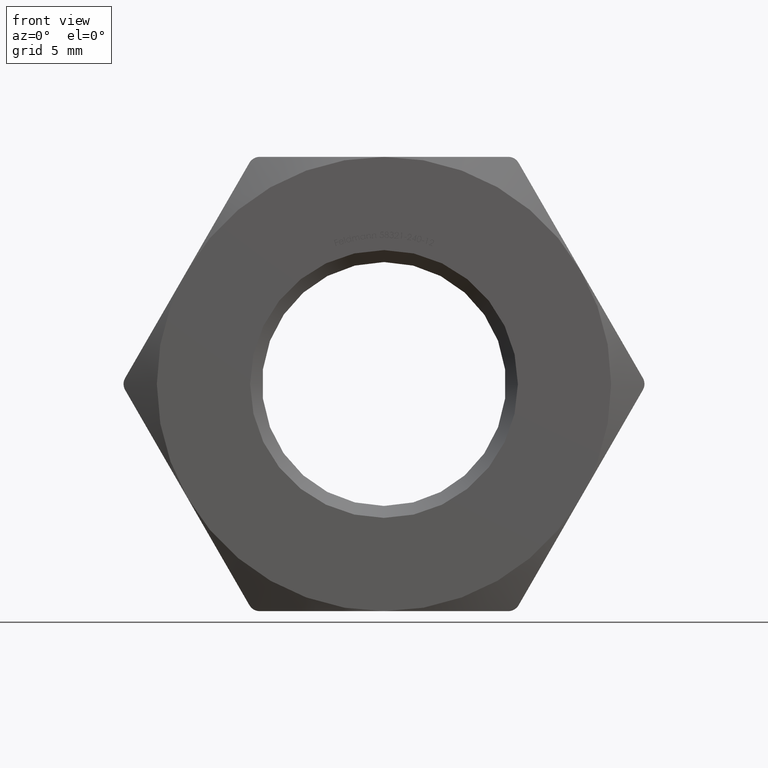
[diagram: clean part render]
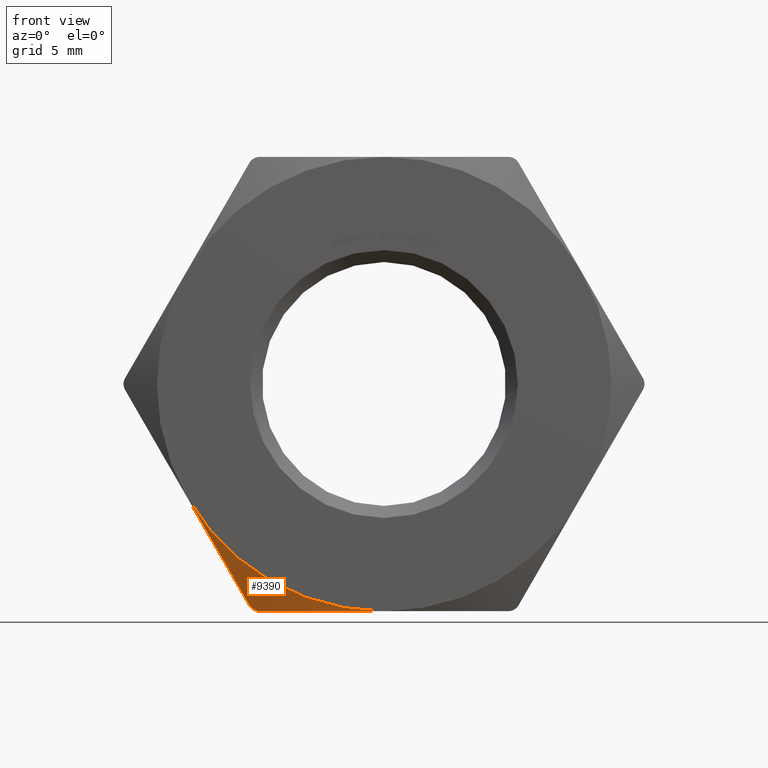
[diagram: same view with one face highlighted and labeled with its STEP entity id]
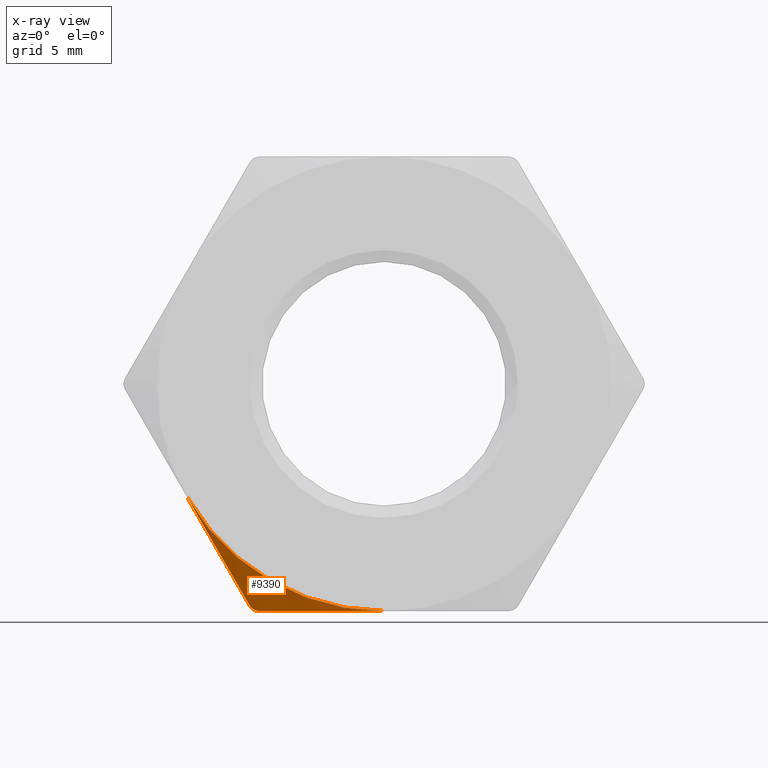
[diagram: x-ray of the same camera — body ghosted, the highlighted face saturated]
A machine part, front view. The second image highlights one B-rep face of the part: STEP entity #9390.
The next image is the same camera in x-ray: the body ghosted, the highlighted face saturated — about 0% of this face is hidden behind the body in this view.
In plain terms, the highlighted conical surface has half-angle 60 deg.
Its self-contained STEP definition (entity closure, byte-faithful):
#221 = CARTESIAN_POINT ( 'NONE',  ( -6.054432448312233800, -4.468805358379076300, -8.513415388529578500 ) ) ;
#1421 = CARTESIAN_POINT ( 'NONE',  ( -1.748548221912493900, -4.928786257910811500, -9.500000000000001800 ) ) ;
#1480 = CARTESIAN_POINT ( 'NONE',  ( -5.196152422707283900, -4.233161112797590800, -9.500000000000000000 ) ) ;
#2105 = EDGE_CURVE ( 'NONE', #13278, #15606, #14545, .T. ) ;
#2808 = CIRCLE ( 'NONE', #4754, 9.499999999999998200 ) ;
#3042 = DIRECTION ( 'NONE',  ( -0.0000000000000000000, -1.000000000000000000, -0.0000000000000000000 ) ) ;
#3048 = B_SPLINE_CURVE_WITH_KNOTS ( 'NONE', 3,
 ( #11069, #6246, #1421, #12238, #14641, #1480 ),
 .UNSPECIFIED., .F., .F.,
 ( 4, 2, 4 ),
 ( 0.009558317508500478000, 0.01217662311715559500, 0.01479492872581071200 ),
 .UNSPECIFIED. ) ;
#3787 = EDGE_CURVE ( 'NONE', #13278, #4068, #5661, .T. ) ;
#3955 = CARTESIAN_POINT ( 'NONE',  ( -8.227241335952165000, -5.000000000000000000, -4.749999999999999100 ) ) ;
#4068 = VERTEX_POINT ( 'NONE', #7234 ) ;
#4213 = CARTESIAN_POINT ( 'NONE',  ( -8.227241335952165000, -5.000000000000000000, -4.749999999999999100 ) ) ;
#4407 = DIRECTION ( 'NONE',  ( 1.776356839400250500E-015, 0.0000000000000000000, 1.000000000000000000 ) ) ;
#4462 = CARTESIAN_POINT ( 'NONE',  ( 5.178338499514328600E-017, -5.000000000000000000, 1.704137622190297200E-016 ) ) ;
#4754 = AXIS2_PLACEMENT_3D ( 'NONE', #4462, #3042, #4407 ) ;
#5100 = CARTESIAN_POINT ( 'NONE',  ( -5.629165124598355200, -4.233161112797496600, -9.250000000000861500 ) ) ;
#5277 = CARTESIAN_POINT ( 'NONE',  ( -5.370289189536086000, -4.196108957237618700, -9.476903473387972500 ) ) ;
#5370 = DIRECTION ( 'NONE',  ( 1.000000000000000000, 0.0000000000000000000, 0.0000000000000000000 ) ) ;
#5661 = B_SPLINE_CURVE_WITH_KNOTS ( 'NONE', 3,
 ( #15002, #11412, #13782, #5277, #10271, #9096 ),
 .UNSPECIFIED., .F., .F.,
 ( 4, 2, 4 ),
 ( 9.645686507497374100E-016, 0.0002637781458276257900, 0.0005275562916542870800 ),
 .UNSPECIFIED. ) ;
#5955 = ORIENTED_EDGE ( 'NONE', *, *, #3787, .T. ) ;
#6246 = CARTESIAN_POINT ( 'NONE',  ( -0.8769579191401496400, -4.999999999999998200, -9.500000000000001800 ) ) ;
#7234 = CARTESIAN_POINT ( 'NONE',  ( -5.196152422707283900, -4.233161112797590800, -9.500000000000000000 ) ) ;
#7958 = ORIENTED_EDGE ( 'NONE', *, *, #2105, .F. ) ;
#8212 = EDGE_CURVE ( 'NONE', #8534, #4068, #3048, .T. ) ;
#8534 = VERTEX_POINT ( 'NONE', #9035 ) ;
#8703 = CARTESIAN_POINT ( 'NONE',  ( -7.348052271291361000, -4.927662757294315000, -6.272800129451478100 ) ) ;
#8755 = EDGE_LOOP ( 'NONE', ( #7958, #5955, #14502, #15370 ) ) ;
#9035 = CARTESIAN_POINT ( 'NONE',  ( -1.450531213742016000E-015, -5.000000000000000000, -9.499999999999998200 ) ) ;
#9096 = CARTESIAN_POINT ( 'NONE',  ( -5.196152422707283900, -4.233161112797590800, -9.500000000000000000 ) ) ;
#9111 = AXIS2_PLACEMENT_3D ( 'NONE', #12626, #11345, #5370 ) ;
#9390 = ADVANCED_FACE ( 'NONE', ( #14135 ), #10766, .T. ) ;
#10150 = EDGE_CURVE ( 'NONE', #15606, #8534, #2808, .T. ) ;
#10271 = CARTESIAN_POINT ( 'NONE',  ( -5.282050604140535700, -4.209362655883603900, -9.499999999999994700 ) ) ;
#10766 = CONICAL_SURFACE ( 'NONE', #9111, 9.499999999999998200, 1.047197551196604300 ) ;
#11069 = CARTESIAN_POINT ( 'NONE',  ( -1.450531213742016000E-015, -5.000000000000000000, -9.499999999999998200 ) ) ;
#11345 = DIRECTION ( 'NONE',  ( -1.035667699902865700E-017, 1.000000000000000000, -0.0000000000000000000 ) ) ;
#11412 = CARTESIAN_POINT ( 'NONE',  ( -5.586231662572767000, -4.209371315874025600, -9.324362937574012000 ) ) ;
#12238 = CARTESIAN_POINT ( 'NONE',  ( -3.482435840627232900, -4.663065989375613900, -9.500000000000000000 ) ) ;
#12301 = CARTESIAN_POINT ( 'NONE',  ( -6.482771478358119000, -4.661682687220362300, -7.771510425625339600 ) ) ;
#12626 = CARTESIAN_POINT ( 'NONE',  ( 5.178338499514328600E-017, -5.000000000000000000, 0.0000000000000000000 ) ) ;
#13278 = VERTEX_POINT ( 'NONE', #15623 ) ;
#13543 = CARTESIAN_POINT ( 'NONE',  ( -7.785049015618853700, -5.000000000000004400, -5.515899565534069500 ) ) ;
#13782 = CARTESIAN_POINT ( 'NONE',  ( -5.522793143055217500, -4.196196110277406400, -9.388672582389713000 ) ) ;
#14135 = FACE_OUTER_BOUND ( 'NONE', #8755, .T. ) ;
#14502 = ORIENTED_EDGE ( 'NONE', *, *, #8212, .F. ) ;
#14545 = B_SPLINE_CURVE_WITH_KNOTS ( 'NONE', 3,
 ( #5100, #221, #12301, #8703, #13543, #3955 ),
 .UNSPECIFIED., .F., .F.,
 ( 4, 2, 4 ),
 ( 0.0002975922718325331600, 0.002923788827799092800, 0.005549985383765652400 ),
 .UNSPECIFIED. ) ;
#14641 = CARTESIAN_POINT ( 'NONE',  ( -4.348666152671951200, -4.467960792442867500, -9.500000000000001800 ) ) ;
#15002 = CARTESIAN_POINT ( 'NONE',  ( -5.629165124598355200, -4.233161112797496600, -9.250000000000861500 ) ) ;
#15370 = ORIENTED_EDGE ( 'NONE', *, *, #10150, .F. ) ;
#15606 = VERTEX_POINT ( 'NONE', #4213 ) ;
#15623 = CARTESIAN_POINT ( 'NONE',  ( -5.629165124598355200, -4.233161112797496600, -9.250000000000861500 ) ) ;